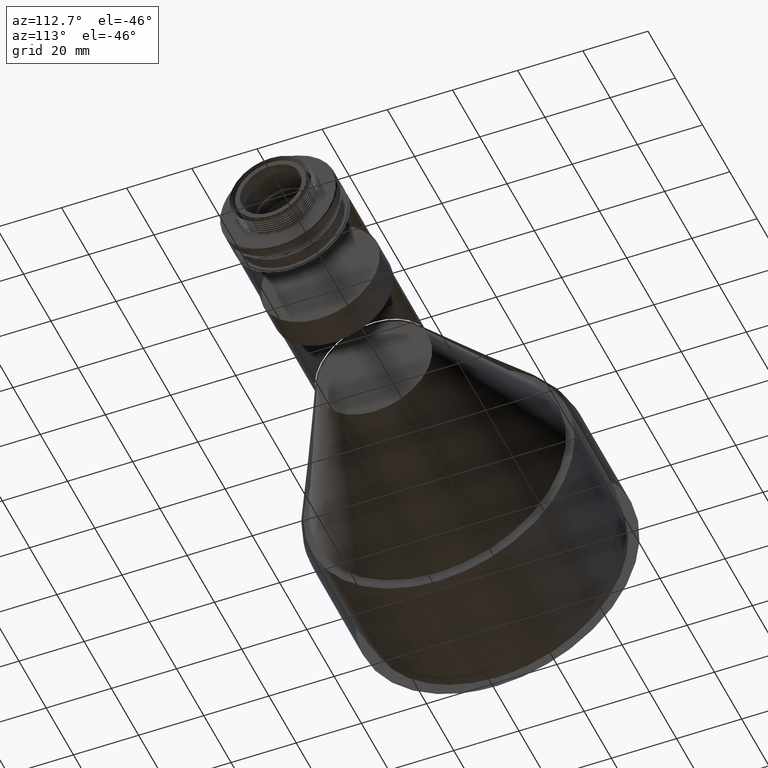
[diagram: clean part render]
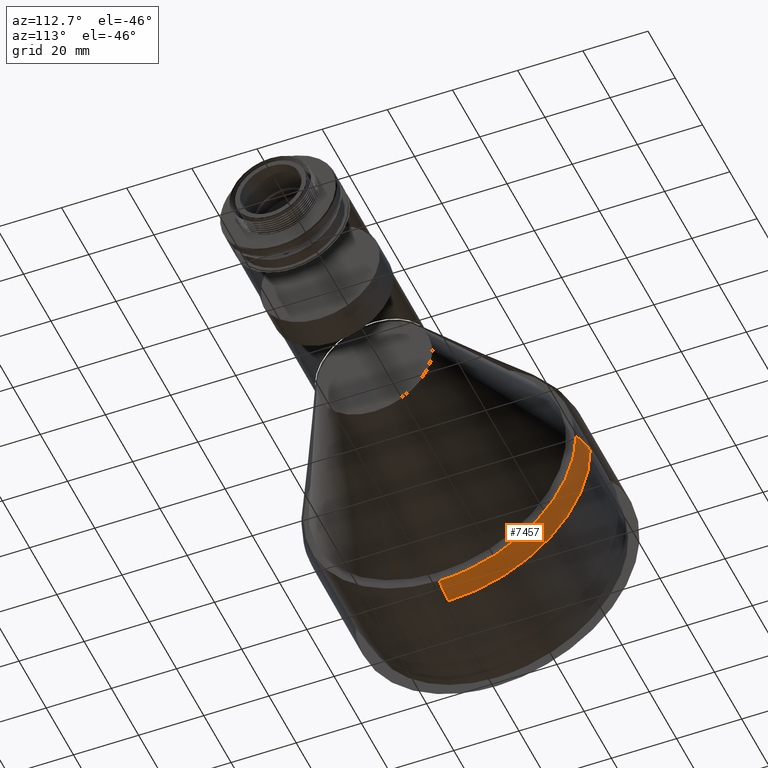
[diagram: same view with one face highlighted and labeled with its STEP entity id]
A machine part, auxiliary view. The second image highlights one B-rep face of the part: STEP entity #7457.
In plain terms, the highlighted toroidal blend (fillet) surface has major radius 28.7 mm and minor (blend) radius 15 mm.
Its self-contained STEP definition (entity closure, byte-faithful):
#12 = VERTEX_POINT ( 'NONE', #9108 ) ;
#21 = EDGE_CURVE ( 'NONE', #2561, #5060, #5887, .T. ) ;
#179 = CARTESIAN_POINT ( 'NONE',  ( 12.17900414489877292, 11.55686917704228911, -206.3525004081074030 ) ) ;
#365 = CARTESIAN_POINT ( 'NONE',  ( 18.97945199906473235, 6.280208458294664453, -205.8200036343589545 ) ) ;
#396 = CARTESIAN_POINT ( 'NONE',  ( 18.97945199730233412, 40.53101876284937077, -175.6332281877288608 ) ) ;
#449 = CARTESIAN_POINT ( 'NONE',  ( 18.97945199727479348, 41.11763456668387562, -173.3231351351148248 ) ) ;
#608 = CARTESIAN_POINT ( 'NONE',  ( 18.97945199833026209, 20.33563625469486880, -201.0163952717884968 ) ) ;
#658 = CARTESIAN_POINT ( 'NONE',  ( 18.97945199760687984, 34.39989095394492580, -188.4458179785681580 ) ) ;
#685 = CARTESIAN_POINT ( 'NONE',  ( 12.17900414489730920, 43.44829642828046445, -169.5992237742126179 ) ) ;
#718 = B_SPLINE_CURVE_WITH_KNOTS ( 'NONE', 3,
 ( #7604, #6502, #6699, #179, #8166, #1756, #5063, #2366, #4807, #5997, #9286, #5635, #5119, #8112, #8368, #685, #8919, #1868 ),
 .UNSPECIFIED., .F., .F.,
 ( 4, 2, 2, 2, 2, 2, 2, 2, 4 ),
 ( 0.000000000000000000, 0.06260664796239949481, 0.1252132959247989896, 0.1878199438871984706, 0.2504265918495979792, 0.3130332398119974879, 0.3756398877743969411, 0.4382465357367964498, 0.5008531836991959585 ),
 .UNSPECIFIED. ) ;
#1108 = AXIS2_PLACEMENT_3D ( 'NONE', #1998, #4533, #8646 ) ;
#1171 = ORIENTED_EDGE ( 'NONE', *, *, #21, .T. ) ;
#1375 = CARTESIAN_POINT ( 'NONE',  ( 18.97945199737771915, 38.97680160973397534, -180.1215555075890791 ) ) ;
#1476 = CARTESIAN_POINT ( 'NONE',  ( 18.97945199802330762, 26.26489065539085033, -197.0609398539812105 ) ) ;
#1669 = CARTESIAN_POINT ( 'NONE',  ( 18.97945199897327484, 9.234853494923878969, -205.1552085006959487 ) ) ;
#1756 = CARTESIAN_POINT ( 'NONE',  ( 12.17900414489852601, 19.57563409412723132, -203.2862164708836019 ) ) ;
#1868 = CARTESIAN_POINT ( 'NONE',  ( 12.17900414374843976, 43.69937423061163884, -163.8775522848591493 ) ) ;
#1998 = CARTESIAN_POINT ( 'NONE',  ( 12.17900414172799906, 2.256106412801270007E-10, -164.1114151906799918 ) ) ;
#2080 = VERTEX_POINT ( 'NONE', #3907 ) ;
#2340 = CARTESIAN_POINT ( 'NONE',  ( 18.97945199775739766, 31.44264466533328672, -192.1627209202299866 ) ) ;
#2366 = CARTESIAN_POINT ( 'NONE',  ( 12.17900414489828620, 26.84211837107621079, -198.7144668898148723 ) ) ;
#2494 = CARTESIAN_POINT ( 'NONE',  ( 14.53161912893581231, 0.2331189801119752103, -207.6717796867184518 ) ) ;
#2500 = CARTESIAN_POINT ( 'NONE',  ( 18.97945199866948585, 13.82453139849776846, -203.9159122767462407 ) ) ;
#2543 = CARTESIAN_POINT ( 'NONE',  ( 18.97945199917189996, 0.2251392734345284974, -206.1807009065920226 ) ) ;
#2561 = VERTEX_POINT ( 'NONE', #1669 ) ;
#2897 = CARTESIAN_POINT ( 'NONE',  ( 18.97945199723427834, 42.08199514271284869, -166.2611457560633426 ) ) ;
#2957 = FACE_OUTER_BOUND ( 'NONE', #6807, .T. ) ;
#3101 = CARTESIAN_POINT ( 'NONE',  ( 18.97945199812168582, 24.35987754901027458, -198.4932711974773838 ) ) ;
#3352 = CARTESIAN_POINT ( 'NONE',  ( 12.17900414021520206, 28.69958901692131548, -163.9578255935401216 ) ) ;
#3361 = CARTESIAN_POINT ( 'NONE',  ( 12.17900414489909977, 0.2338629052389759877, -207.8107894207030029 ) ) ;
#3708 = CARTESIAN_POINT ( 'NONE',  ( 18.97945199839083585, 42.06928571645767079, -163.8862759189314033 ) ) ;
#3907 = CARTESIAN_POINT ( 'NONE',  ( 12.17900414489909977, 0.2338629052389759877, -207.8107894207030029 ) ) ;
#4150 = ORIENTED_EDGE ( 'NONE', *, *, #5808, .T. ) ;
#4278 = CARTESIAN_POINT ( 'NONE',  ( 18.97945199897327484, 9.234853494923878969, -205.1552085006959487 ) ) ;
#4533 = DIRECTION ( 'NONE',  ( 1.000000000000000000, 5.271954267226459942E-11, -1.513894552467045099E-12 ) ) ;
#4595 = VERTEX_POINT ( 'NONE', #10347 ) ;
#4677 = CARTESIAN_POINT ( 'NONE',  ( 18.97945199724076559, 41.89312806530648459, -168.6370618404644404 ) ) ;
#4781 = CARTESIAN_POINT ( 'NONE',  ( 18.97945199784115999, 29.80629845648838128, -193.8956430471134809 ) ) ;
#4807 = CARTESIAN_POINT ( 'NONE',  ( 12.17900414489820271, 29.05390470311763451, -196.8794045559895380 ) ) ;
#5060 = VERTEX_POINT ( 'NONE', #9555 ) ;
#5063 = CARTESIAN_POINT ( 'NONE',  ( 12.17900414489844785, 22.10292447362688506, -201.9179124530140257 ) ) ;
#5119 = CARTESIAN_POINT ( 'NONE',  ( 12.17900414489771599, 39.38207453718568019, -183.2666419109963272 ) ) ;
#5123 = B_SPLINE_CURVE_WITH_KNOTS ( 'NONE', 3,
 ( #6778, #7793, #365, #4278 ),
 .UNSPECIFIED., .F., .F.,
 ( 4, 4 ),
 ( 0.000000000000000000, 0.06874311432902451002 ),
 .UNSPECIFIED. ) ;
#5148 = CARTESIAN_POINT ( 'NONE',  ( 16.81948258828024834, 0.2301841029848709363, -207.1233716955569548 ) ) ;
#5225 = B_SPLINE_CURVE_WITH_KNOTS ( 'NONE', 3,
 ( #3361, #7696, #2494, #5148, #6679, #2543 ),
 .UNSPECIFIED., .F., .F.,
 ( 4, 2, 4 ),
 ( 0.000000000000000000, 0.5000000000000003331, 1.000000000000000000 ),
 .UNSPECIFIED. ) ;
#5635 = CARTESIAN_POINT ( 'NONE',  ( 12.17900414489779592, 38.04089836727644780, -185.8084324273247887 ) ) ;
#5808 = EDGE_CURVE ( 'NONE', #4595, #2561, #5123, .T. ) ;
#5887 = B_SPLINE_CURVE_WITH_KNOTS ( 'NONE', 3,
 ( #9918, #7273, #2500, #8028, #608, #3101, #1476, #4781, #2340, #658, #7825, #9550, #1375, #396, #449, #4677, #2897, #3708 ),
 .UNSPECIFIED., .F., .F.,
 ( 4, 2, 2, 2, 2, 2, 2, 2, 4 ),
 ( 0.06874311432902451002, 0.1226502250378964376, 0.1765573357467683790, 0.2304644464556402927, 0.2843715571645122342, 0.3382786678733841756, 0.3921857785822561171, 0.4460928892911280585, 0.5000000000000000000 ),
 .UNSPECIFIED. ) ;
#5979 = EDGE_CURVE ( 'NONE', #2080, #12, #718, .T. ) ;
#5997 = CARTESIAN_POINT ( 'NONE',  ( 12.17900414489803929, 33.07707509219518016, -192.8129414374489556 ) ) ;
#6400 = AXIS2_PLACEMENT_3D ( 'NONE', #3352, #8234, #6669 ) ;
#6502 = CARTESIAN_POINT ( 'NONE',  ( 12.17900414489901451, 3.093980258634347447, -207.7954831293612870 ) ) ;
#6669 = DIRECTION ( 'NONE',  ( 0.000000000000000000, 0.9999856803328532884, 0.005351553908962808880 ) ) ;
#6679 = CARTESIAN_POINT ( 'NONE',  ( 17.93095199458089439, 0.2279933041410079353, -206.7140013674962233 ) ) ;
#6699 = CARTESIAN_POINT ( 'NONE',  ( 12.17900414489893812, 5.952519391048700648, -207.4984872100536961 ) ) ;
#6778 = CARTESIAN_POINT ( 'NONE',  ( 18.97945199917189996, 0.2251392734345284974, -206.1807009065920226 ) ) ;
#6807 = EDGE_LOOP ( 'NONE', ( #9380, #10442, #8438, #4150, #1171 ) ) ;
#7173 = EDGE_CURVE ( 'NONE', #2080, #4595, #5225, .T. ) ;
#7273 = CARTESIAN_POINT ( 'NONE',  ( 18.97945199878834188, 11.55183285586024944, -204.6338881449596556 ) ) ;
#7457 = ADVANCED_FACE ( 'NONE', ( #2957 ), #9753, .F. ) ;
#7604 = CARTESIAN_POINT ( 'NONE',  ( 12.17900414489909977, 0.2338629052389759877, -207.8107894207030029 ) ) ;
#7696 = CARTESIAN_POINT ( 'NONE',  ( 13.35534159083851691, 0.2338629089295093388, -207.8107894208239657 ) ) ;
#7793 = CARTESIAN_POINT ( 'NONE',  ( 18.97945199922392234, 3.253607067016625720, -206.1644936665032333 ) ) ;
#7825 = CARTESIAN_POINT ( 'NONE',  ( 18.97945199754012791, 35.72075054567041263, -186.4618880523887015 ) ) ;
#8028 = CARTESIAN_POINT ( 'NONE',  ( 18.97945199844044595, 18.21646316316787306, -202.1071534581851097 ) ) ;
#8112 = CARTESIAN_POINT ( 'NONE',  ( 12.17900414489755434, 41.54283125158760726, -177.9701192125488944 ) ) ;
#8166 = CARTESIAN_POINT ( 'NONE',  ( 12.17900414489869121, 14.30254125202904802, -205.5035378622507380 ) ) ;
#8234 = DIRECTION ( 'NONE',  ( -1.796004348667478179E-12, 0.005351553908963383073, -0.9999856803328533994 ) ) ;
#8368 = CARTESIAN_POINT ( 'NONE',  ( 12.17900414489747263, 42.36235836711251324, -175.2155179973911174 ) ) ;
#8438 = ORIENTED_EDGE ( 'NONE', *, *, #7173, .T. ) ;
#8646 = DIRECTION ( 'NONE',  ( -5.271068605765139318E-11, 0.9999856803328532884, 0.005351553908963149753 ) ) ;
#8919 = CARTESIAN_POINT ( 'NONE',  ( 12.17900414489722571, 43.71468052196499343, -166.7376696401341576 ) ) ;
#8984 = CIRCLE ( 'NONE', #6400, 15.00000000872380213 ) ;
#9108 = CARTESIAN_POINT ( 'NONE',  ( 12.17900414374843976, 43.69937423061163884, -163.8775522848591493 ) ) ;
#9286 = CARTESIAN_POINT ( 'NONE',  ( 12.17900414489795757, 34.88835966841531189, -190.5816412040476564 ) ) ;
#9380 = ORIENTED_EDGE ( 'NONE', *, *, #9415, .F. ) ;
#9415 = EDGE_CURVE ( 'NONE', #12, #5060, #8984, .T. ) ;
#9550 = CARTESIAN_POINT ( 'NONE',  ( 18.97945199742554934, 38.00922153944106441, -182.2997283245656490 ) ) ;
#9555 = CARTESIAN_POINT ( 'NONE',  ( 18.97945199839083585, 42.06928571645767079, -163.8862759189314033 ) ) ;
#9753 = TOROIDAL_SURFACE ( 'NONE', #1108, 28.69999999114270040, 15.00000000872379857 ) ;
#9918 = CARTESIAN_POINT ( 'NONE',  ( 18.97945199897327484, 9.234853494923878969, -205.1552085006959487 ) ) ;
#10347 = CARTESIAN_POINT ( 'NONE',  ( 18.97945199917189996, 0.2251392734345284974, -206.1807009065920226 ) ) ;
#10442 = ORIENTED_EDGE ( 'NONE', *, *, #5979, .F. ) ;